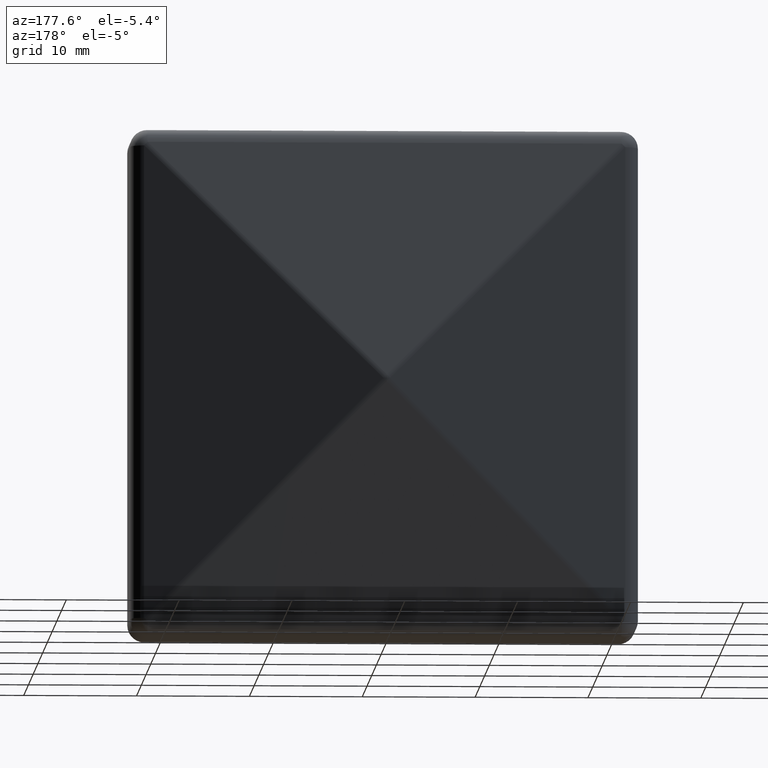
[diagram: clean part render]
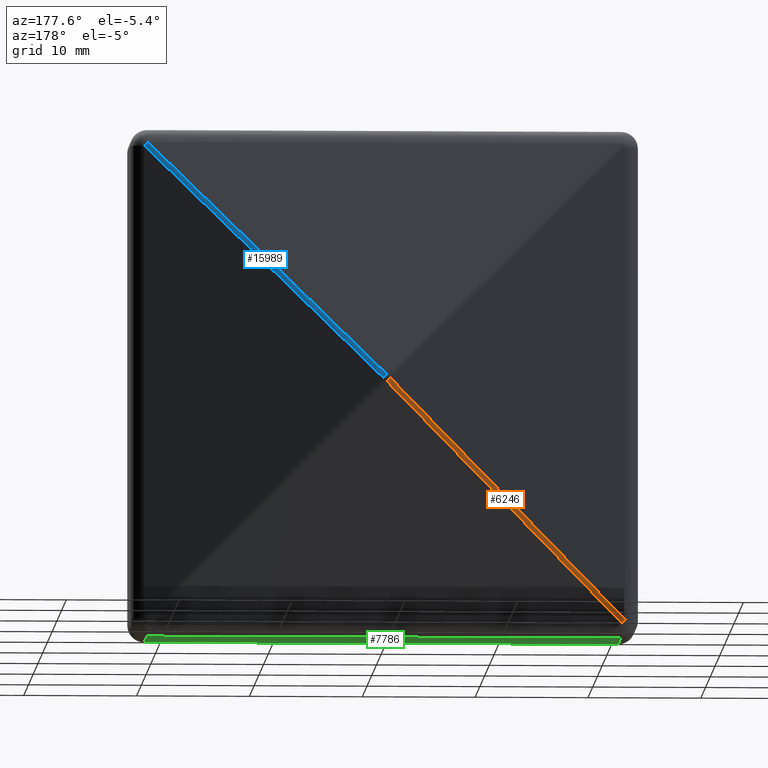
[diagram: same view with three faces highlighted in distinct colors, each labeled with its STEP entity id]
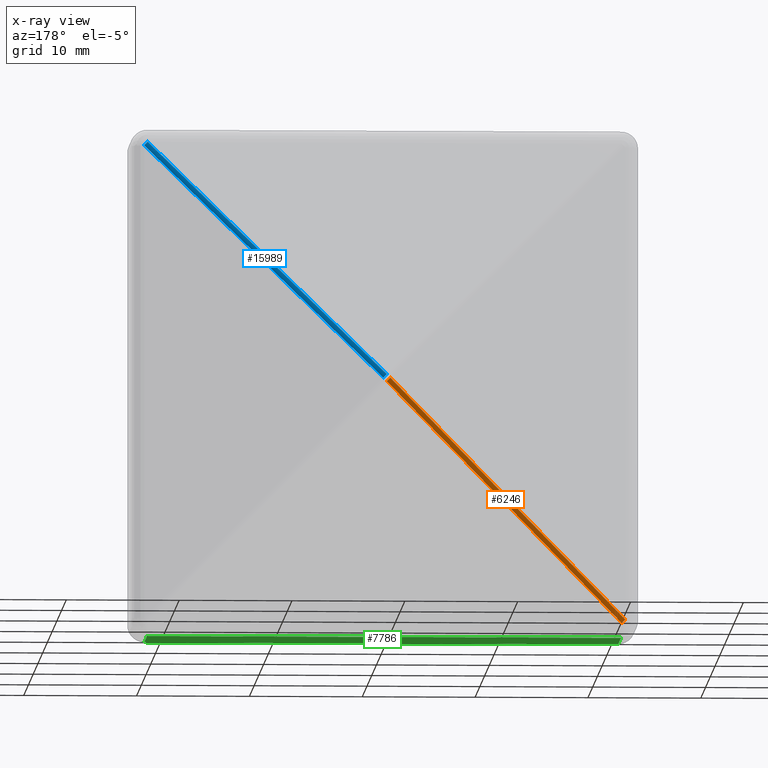
[diagram: x-ray of the same camera — body ghosted, the three highlighted faces saturated]
A machine part, auxiliary view with three faces highlighted in distinct colors.
The next image is the same camera in x-ray (body ghosted, the three faces saturated) — at least one of them is partly hidden behind the body in this view.
Their STEP definitions:

[orange] entity #6246 — the highlighted cylindrical surface (edge-blend (fillet) strip) has radius 1.5 mm, axis along (-0.6991, -0.1498, -0.6991).
#174 = ORIENTED_EDGE ( 'NONE', *, *, #5343, .F. ) ;
#183 = CARTESIAN_POINT ( 'NONE',  ( -21.31429363309630900, 7.466703621116119300, -20.99999999999999300 ) ) ;
#290 = VERTEX_POINT ( 'NONE', #12041 ) ;
#571 = VECTOR ( 'NONE', #4943, 1000.000000000000100 ) ;
#1525 = CARTESIAN_POINT ( 'NONE',  ( 9.897755610972566800, 14.08765125203881000, 9.583461977876254400 ) ) ;
#1660 = DIRECTION ( 'NONE',  ( -0.7071067811865475700, 0.0000000000000000000, 0.7071067811865475700 ) ) ;
#2840 = DIRECTION ( 'NONE',  ( -0.6991266372144913100, -0.1498128508316767000, -0.6991266372144913100 ) ) ;
#4642 = CARTESIAN_POINT ( 'NONE',  ( -20.99999999999998600, 6.000000000000007100, -20.99999999999999300 ) ) ;
#4943 = DIRECTION ( 'NONE',  ( -0.6991266372144912000, -0.1498128508316767000, -0.6991266372144912000 ) ) ;
#5343 = EDGE_CURVE ( 'NONE', #290, #13440, #16321, .T. ) ;
#5591 = CARTESIAN_POINT ( 'NONE',  ( -0.3142936330963099800, 11.96670362111611800, 1.040834085586084300E-014 ) ) ;
#5929 = DIRECTION ( 'NONE',  ( -0.7071067811865544600, 0.0000000000000000000, 0.7071067811865405800 ) ) ;
#6112 = CARTESIAN_POINT ( 'NONE',  ( -12.41155049095168500, 9.374434294432822100, -12.09725685785538300 ) ) ;
#6246 = ADVANCED_FACE ( 'NONE', ( #10222 ), #13222, .T. ) ;
#6380 = LINE ( 'NONE', #6112, #571 ) ;
#6918 = EDGE_CURVE ( 'NONE', #14050, #290, #10450, .T. ) ;
#7644 = DIRECTION ( 'NONE',  ( -0.7071067811865404700, 0.0000000000000000000, 0.7071067811865546800 ) ) ;
#7732 = DIRECTION ( 'NONE',  ( 0.6991266372144912000, 0.1498128508316767000, 0.6991266372144912000 ) ) ;
#8123 = CIRCLE ( 'NONE', #9742, 1.499999999999999800 ) ;
#8154 = VECTOR ( 'NONE', #7732, 1000.000000000000100 ) ;
#8482 = EDGE_LOOP ( 'NONE', ( #9909, #174, #11798, #13899 ) ) ;
#8745 = CARTESIAN_POINT ( 'NONE',  ( 2.710505431213761100E-016, 10.50000000000000000, 0.0000000000000000000 ) ) ;
#8887 = CARTESIAN_POINT ( 'NONE',  ( 6.938893903907228400E-015, 11.96670362111611800, -0.3142936330963099800 ) ) ;
#9742 = AXIS2_PLACEMENT_3D ( 'NONE', #8745, #12657, #7644 ) ;
#9909 = ORIENTED_EDGE ( 'NONE', *, *, #16521, .T. ) ;
#10222 = FACE_OUTER_BOUND ( 'NONE', #8482, .T. ) ;
#10450 = CIRCLE ( 'NONE', #16083, 1.499999999999999600 ) ;
#11798 = ORIENTED_EDGE ( 'NONE', *, *, #6918, .F. ) ;
#12041 = CARTESIAN_POINT ( 'NONE',  ( -20.99999999999997500, 7.466703621116119300, -21.31429363309630200 ) ) ;
#12657 = DIRECTION ( 'NONE',  ( -0.6991266372144981900, -0.1498128508316779500, -0.6991266372144840900 ) ) ;
#12764 = AXIS2_PLACEMENT_3D ( 'NONE', #13048, #2840, #1660 ) ;
#13048 = CARTESIAN_POINT ( 'NONE',  ( -12.09725685785537400, 7.907730673316709900, -12.09725685785538300 ) ) ;
#13222 = CYLINDRICAL_SURFACE ( 'NONE', #12764, 1.499999999999999600 ) ;
#13269 = EDGE_CURVE ( 'NONE', #13674, #14050, #6380, .T. ) ;
#13440 = VERTEX_POINT ( 'NONE', #8887 ) ;
#13674 = VERTEX_POINT ( 'NONE', #5591 ) ;
#13899 = ORIENTED_EDGE ( 'NONE', *, *, #13269, .F. ) ;
#14050 = VERTEX_POINT ( 'NONE', #183 ) ;
#16083 = AXIS2_PLACEMENT_3D ( 'NONE', #4642, #16311, #5929 ) ;
#16311 = DIRECTION ( 'NONE',  ( -0.6991266372144842000, -0.1498128508316758900, -0.6991266372144987500 ) ) ;
#16321 = LINE ( 'NONE', #1525, #8154 ) ;
#16521 = EDGE_CURVE ( 'NONE', #13674, #13440, #8123, .T. ) ;

[blue] entity #15989 — the highlighted cylindrical surface (edge-blend (fillet) strip) has radius 1.5 mm, axis along (0.6991, -0.1498, 0.6991).
#42 = EDGE_CURVE ( 'NONE', #7215, #4459, #11495, .T. ) ;
#147 = CARTESIAN_POINT ( 'NONE',  ( 20.99999999999998900, 6.000000000000001800, 20.99999999999998600 ) ) ;
#601 = CARTESIAN_POINT ( 'NONE',  ( 0.3142936330963099800, 11.96670362111611800, -3.469446951953614200E-015 ) ) ;
#1054 = DIRECTION ( 'NONE',  ( 0.6991266372144912000, -0.1498128508316767000, 0.6991266372144912000 ) ) ;
#1117 = DIRECTION ( 'NONE',  ( -0.6991266372144934200, 0.1498128508316762800, -0.6991266372144894200 ) ) ;
#2004 = EDGE_CURVE ( 'NONE', #2891, #10346, #10600, .T. ) ;
#2403 = AXIS2_PLACEMENT_3D ( 'NONE', #147, #11428, #5072 ) ;
#2779 = DIRECTION ( 'NONE',  ( -0.6991266372144912000, 0.1498128508316767000, -0.6991266372144912000 ) ) ;
#2891 = VERTEX_POINT ( 'NONE', #601 ) ;
#3984 = EDGE_LOOP ( 'NONE', ( #12223, #4289, #12892, #6613 ) ) ;
#4016 = CARTESIAN_POINT ( 'NONE',  ( 21.31429363309630900, 7.466703621116119300, 20.99999999999999600 ) ) ;
#4289 = ORIENTED_EDGE ( 'NONE', *, *, #2004, .F. ) ;
#4459 = VERTEX_POINT ( 'NONE', #11632 ) ;
#5072 = DIRECTION ( 'NONE',  ( -0.7071067811865521200, 0.0000000000000000000, 0.7071067811865429100 ) ) ;
#5157 = AXIS2_PLACEMENT_3D ( 'NONE', #8081, #11758, #11700 ) ;
#6149 = EDGE_CURVE ( 'NONE', #7215, #10346, #15624, .T. ) ;
#6202 = CARTESIAN_POINT ( 'NONE',  ( 20.99999999999998900, 7.466703621116119300, 21.31429363309630500 ) ) ;
#6613 = ORIENTED_EDGE ( 'NONE', *, *, #42, .F. ) ;
#6708 = VECTOR ( 'NONE', #2779, 1000.000000000000100 ) ;
#7215 = VERTEX_POINT ( 'NONE', #6202 ) ;
#8081 = CARTESIAN_POINT ( 'NONE',  ( -9.897755610972588200, 12.62094763092270000, -9.897755610972581100 ) ) ;
#8418 = VECTOR ( 'NONE', #1054, 1000.000000000000100 ) ;
#8990 = CIRCLE ( 'NONE', #13470, 1.500000000000000200 ) ;
#10346 = VERTEX_POINT ( 'NONE', #4016 ) ;
#10600 = LINE ( 'NONE', #15217, #8418 ) ;
#10641 = EDGE_CURVE ( 'NONE', #4459, #2891, #8990, .T. ) ;
#11428 = DIRECTION ( 'NONE',  ( -0.6991266372144869800, 0.1498128508316815500, -0.6991266372144946400 ) ) ;
#11495 = LINE ( 'NONE', #15107, #6708 ) ;
#11632 = CARTESIAN_POINT ( 'NONE',  ( 3.469446951953614200E-015, 11.96670362111611800, 0.3142936330963099800 ) ) ;
#11700 = DIRECTION ( 'NONE',  ( 0.7071067811865475700, 0.0000000000000000000, -0.7071067811865475700 ) ) ;
#11758 = DIRECTION ( 'NONE',  ( 0.6991266372144913100, -0.1498128508316767000, 0.6991266372144913100 ) ) ;
#12223 = ORIENTED_EDGE ( 'NONE', *, *, #6149, .T. ) ;
#12331 = CYLINDRICAL_SURFACE ( 'NONE', #5157, 1.499999999999999600 ) ;
#12892 = ORIENTED_EDGE ( 'NONE', *, *, #10641, .F. ) ;
#13470 = AXIS2_PLACEMENT_3D ( 'NONE', #14947, #1117, #15169 ) ;
#14523 = FACE_OUTER_BOUND ( 'NONE', #3984, .T. ) ;
#14947 = CARTESIAN_POINT ( 'NONE',  ( -2.703309331864781500E-015, 10.50000000000000200, 4.119968255444916800E-015 ) ) ;
#15107 = CARTESIAN_POINT ( 'NONE',  ( 12.09725685785535300, 9.374434294432823800, 12.41155049095167400 ) ) ;
#15169 = DIRECTION ( 'NONE',  ( -0.7071067811865454600, 0.0000000000000000000, 0.7071067811865495700 ) ) ;
#15217 = CARTESIAN_POINT ( 'NONE',  ( -9.583461977876277500, 14.08765125203881600, -9.897755610972581100 ) ) ;
#15624 = CIRCLE ( 'NONE', #2403, 1.499999999999999600 ) ;
#15989 = ADVANCED_FACE ( 'NONE', ( #14523 ), #12331, .T. ) ;

[green] entity #7786 — the highlighted planar face has unit normal (0, 0, 1).
#157 = DIRECTION ( 'NONE',  ( 0.0000000000000000000, -1.000000000000000000, 0.0000000000000000000 ) ) ;
#568 = VECTOR ( 'NONE', #1084, 1000.000000000000000 ) ;
#638 = EDGE_CURVE ( 'NONE', #4521, #10776, #13494, .T. ) ;
#1084 = DIRECTION ( 'NONE',  ( -0.0000000000000000000, 1.000000000000000000, -0.0000000000000000000 ) ) ;
#1239 = CARTESIAN_POINT ( 'NONE',  ( -20.99999999999997900, 12.00000000000000000, -22.50000000000003600 ) ) ;
#1384 = LINE ( 'NONE', #1239, #568 ) ;
#1775 = LINE ( 'NONE', #6057, #11754 ) ;
#2102 = ORIENTED_EDGE ( 'NONE', *, *, #11584, .T. ) ;
#2481 = CARTESIAN_POINT ( 'NONE',  ( -20.99999999999996100, 6.000000000000000900, -22.49999999999998600 ) ) ;
#3366 = CARTESIAN_POINT ( 'NONE',  ( -22.49999999999997900, 0.0000000000000000000, -22.50000000000003600 ) ) ;
#3590 = CARTESIAN_POINT ( 'NONE',  ( 20.99999999999998900, 6.000000000000000900, -22.49999999999999600 ) ) ;
#3601 = DIRECTION ( 'NONE',  ( 1.000000000000000000, 0.0000000000000000000, -0.0000000000000000000 ) ) ;
#3699 = DIRECTION ( 'NONE',  ( 0.0000000000000000000, 0.0000000000000000000, 1.000000000000000000 ) ) ;
#4521 = VERTEX_POINT ( 'NONE', #3590 ) ;
#4703 = CARTESIAN_POINT ( 'NONE',  ( -20.99999999999997900, 0.0000000000000000000, -22.50000000000003600 ) ) ;
#5068 = CARTESIAN_POINT ( 'NONE',  ( 20.99999999999998900, 0.0000000000000000000, -22.50000000000003600 ) ) ;
#5234 = VERTEX_POINT ( 'NONE', #2481 ) ;
#6057 = CARTESIAN_POINT ( 'NONE',  ( 22.49999999999999600, 6.000000000000000900, -22.49999999999999600 ) ) ;
#6232 = PLANE ( 'NONE',  #11637 ) ;
#6236 = FACE_OUTER_BOUND ( 'NONE', #6899, .T. ) ;
#6899 = EDGE_LOOP ( 'NONE', ( #9722, #9139, #15480, #2102 ) ) ;
#7520 = DIRECTION ( 'NONE',  ( -1.000000000000000000, -0.0000000000000000000, 2.220446049250313100E-016 ) ) ;
#7577 = LINE ( 'NONE', #3366, #13161 ) ;
#7786 = ADVANCED_FACE ( 'NONE', ( #6236 ), #6232, .F. ) ;
#9139 = ORIENTED_EDGE ( 'NONE', *, *, #638, .T. ) ;
#9722 = ORIENTED_EDGE ( 'NONE', *, *, #12385, .F. ) ;
#10776 = VERTEX_POINT ( 'NONE', #5068 ) ;
#10891 = VECTOR ( 'NONE', #157, 1000.000000000000000 ) ;
#11504 = VERTEX_POINT ( 'NONE', #4703 ) ;
#11584 = EDGE_CURVE ( 'NONE', #11504, #5234, #1384, .T. ) ;
#11637 = AXIS2_PLACEMENT_3D ( 'NONE', #13776, #3699, #3601 ) ;
#11754 = VECTOR ( 'NONE', #7520, 1000.000000000000000 ) ;
#12385 = EDGE_CURVE ( 'NONE', #4521, #5234, #1775, .T. ) ;
#13161 = VECTOR ( 'NONE', #16157, 1000.000000000000000 ) ;
#13494 = LINE ( 'NONE', #14024, #10891 ) ;
#13776 = CARTESIAN_POINT ( 'NONE',  ( -22.49999999999997900, 12.00000000000000000, -22.50000000000003600 ) ) ;
#14024 = CARTESIAN_POINT ( 'NONE',  ( 20.99999999999998900, 12.00000000000000000, -22.50000000000003600 ) ) ;
#14247 = EDGE_CURVE ( 'NONE', #10776, #11504, #7577, .T. ) ;
#15480 = ORIENTED_EDGE ( 'NONE', *, *, #14247, .T. ) ;
#16157 = DIRECTION ( 'NONE',  ( -1.000000000000000000, -0.0000000000000000000, -0.0000000000000000000 ) ) ;